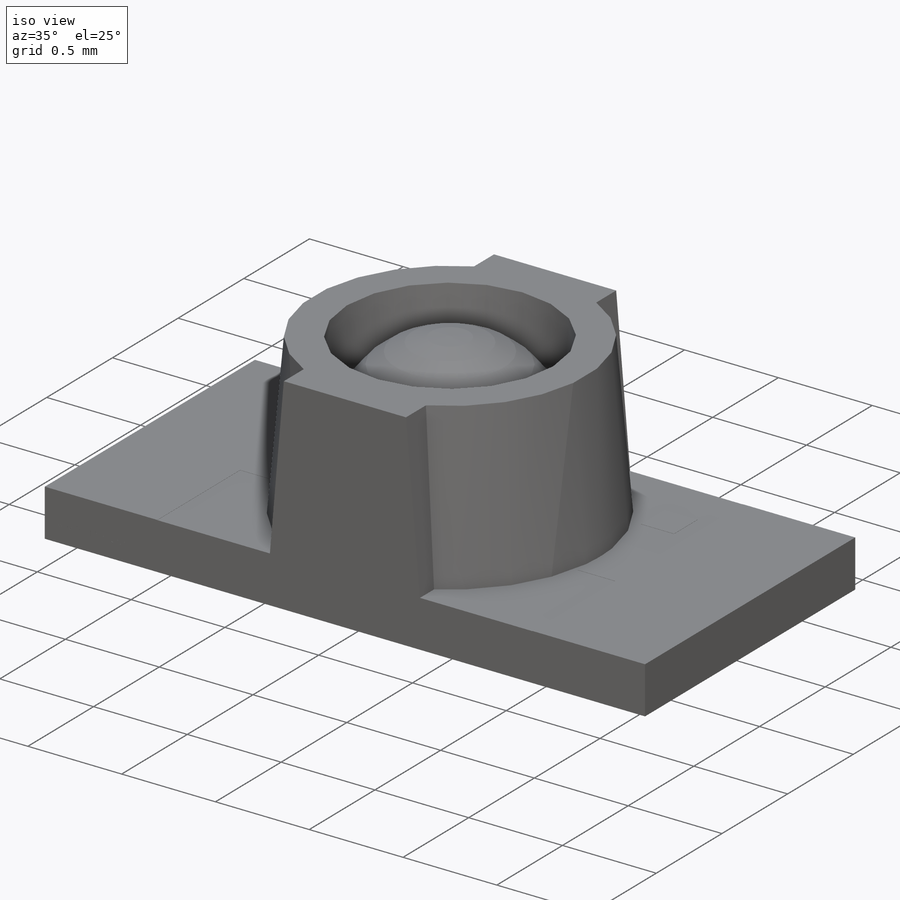
[diagram: iso view]
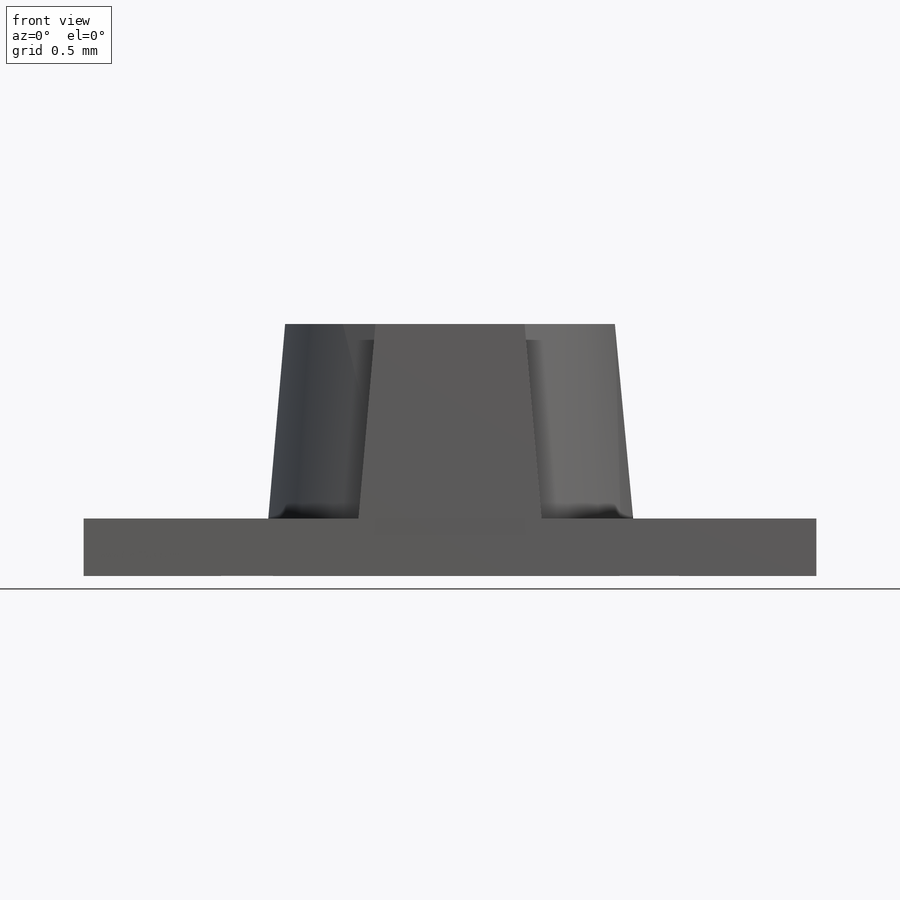
[diagram: front view]
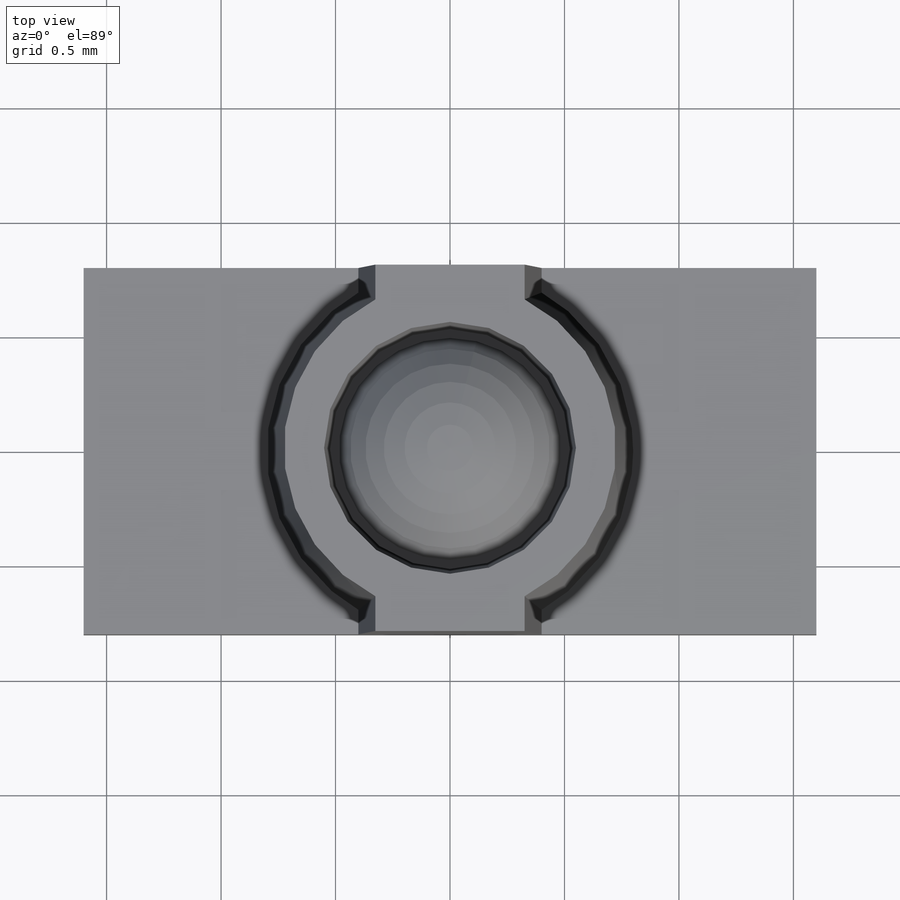
[diagram: top view]
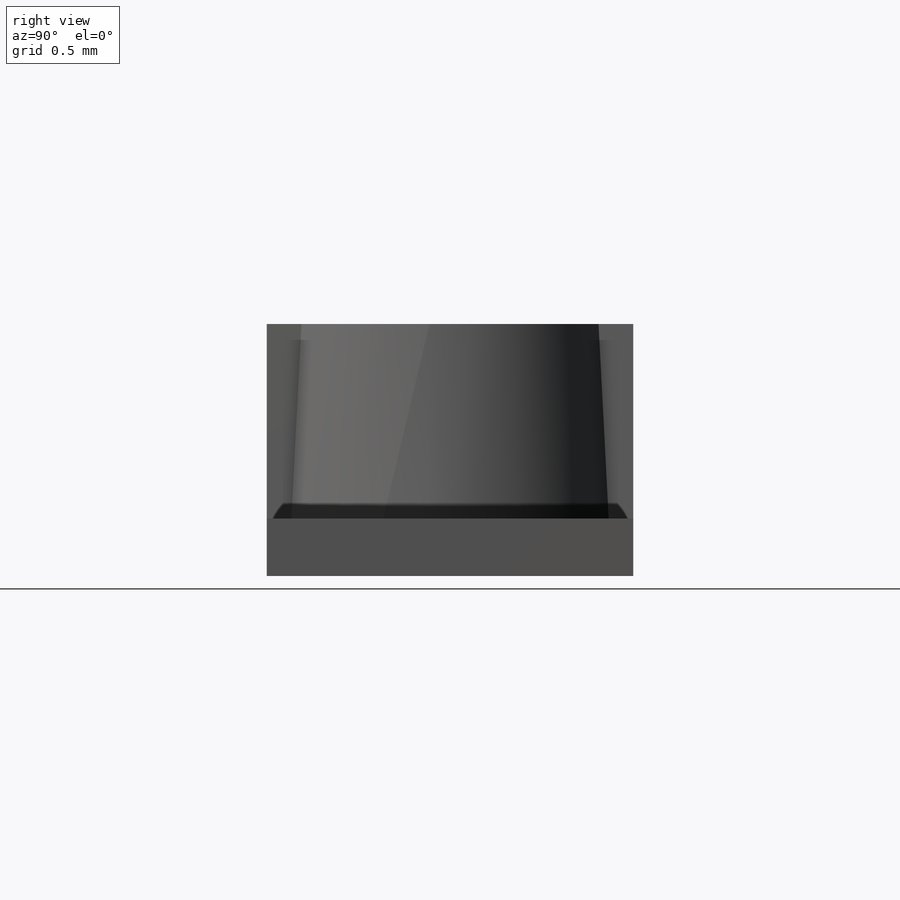
[diagram: right view]
SOLIDWORKS PART (.sldprt)
format: sldprt  version: not decoded by parser v0  size: 744,448 bytes
history: native  units: mm
features: sketch x10, extrude x7, revolve x2, material x1, cut_extrude x1 (+11 scaffold rows collapsed)
feature tree (32):
  scaffold x11  (default folders/planes/origin — collapsed)
  material  "Material <not specified>"
  sketch  "Sketch1"  dims[c1.D3=0.5mm c1.D13=0.05mm c1.D1=0.25mm c1.D2=3.2mm c1.D4=0.75mm c1.D5=0.6mm c1.D6=0.5mm c1.D7=0.01mm c1.D8=0.01mm c1.D9=0.01mm c1.D10=1.6mm c2.D4=~0.859907mm c3.D4=5.0deg c3.D5=0.55mm c3.D6=0.3mm c3.D10=1.1mm c3.D11=0.8mm c4.D5=0.55mm c4.D12=~0.234271mm c5.D12=5.0deg c5.D13=0.8mm]
  extrude  "Extrude1"  Depth=1.6mm
  sketch  "Sketch2"  dims[D1=0.3mm D2=0.5mm D3=2.0mm]
  extrude  "Extrude3"  Depth=0.01mm
  sketch  "Sketch3"  dims[D1=1.6mm]
  extrude  "Extrude4"  Depth=0.001mm
  sketch  "Sketch4"  dims[D1=0.08mm D2=0.5mm]
  revolve  "Revolve3"  [1 undecoded]
  sketch  "Sketch1<7>"  dims[D1=360.0deg]
  revolve  "Revolve4"  [1 undecoded]
  sketch  "Sketch1<8>"  dims[D1=360.0deg]
  sketch  "Sketch5"  dims[c1.D1=0.8mm c1.D2=~0.857423mm c2.D2=5.0deg]
  extrude  "Extrude5"  Depth=0.0001mm
  sketch  "Sketch6"
  extrude  "Extrude6"  Depth=0.0001mm
  extrude  "Extrude7"  [1 undecoded]
  sketch  "Sketch3<5>"  dims[D1=0.001mm D2=0.001mm]
  extrude  "Extrude10"  [1 undecoded]
  sketch  "Sketch2<6>"  dims[D1=0.0001mm]
  cut_extrude  "Cut-Extrude1"  Depth=0.0001mm
decode coverage: 15 of 20 modeling features carry decoded parameters
note: ~ marks probable driven/reference dimensions
note: 4 parameter values undecoded
summary: no parameter record found for 4 features
note: suppression state not decoded; provenance and decode notes live in map.json
